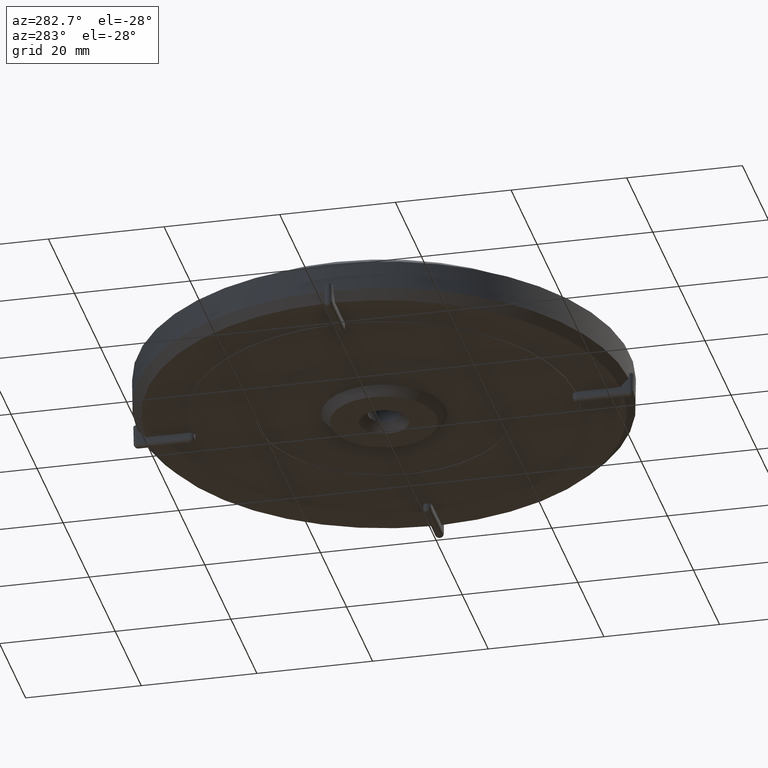
[diagram: clean part render]
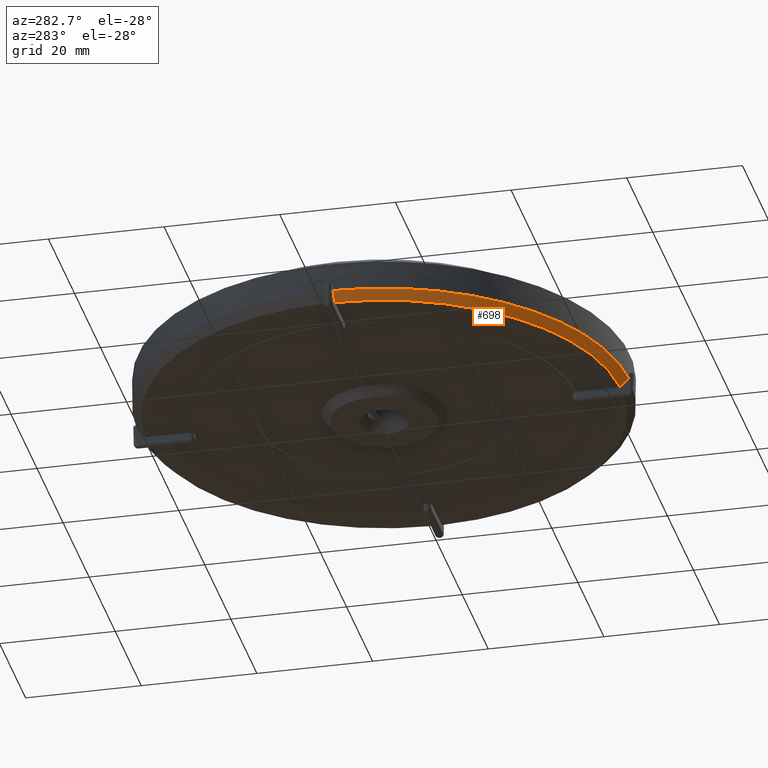
[diagram: same view with one face highlighted and labeled with its STEP entity id]
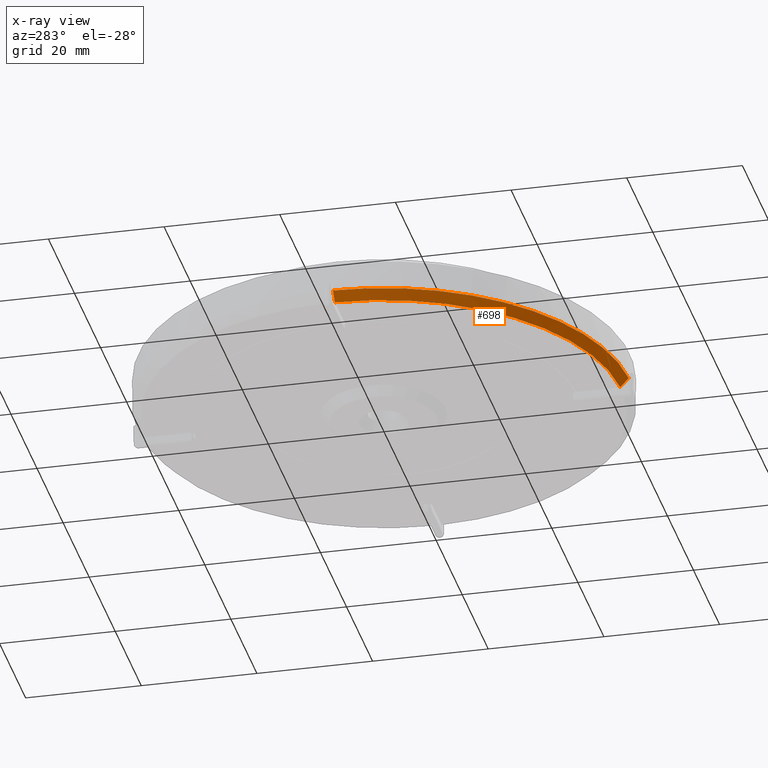
[diagram: x-ray of the same camera — body ghosted, the highlighted face saturated]
A machine part, auxiliary view. The second image highlights one B-rep face of the part: STEP entity #698.
The next image is the same camera in x-ray: the body ghosted, the highlighted face saturated — about 0% of this face is hidden behind the body in this view.
In plain terms, the highlighted conical surface has half-angle 45 deg.
Its self-contained STEP definition (entity closure, byte-faithful):
#177=LINE('',#8945,#297);
#178=LINE('',#8947,#298);
#297=VECTOR('',#3137,1.);
#298=VECTOR('',#3140,1.);
#307=CONICAL_SURFACE('',#2666,42.5000000811643,44.9999999999743);
#484=CIRCLE('',#2513,42.5);
#554=CIRCLE('',#2647,41.0000001649982);
#698=ADVANCED_FACE('',(#847),#307,.T.);
#847=FACE_OUTER_BOUND('',#1012,.T.);
#1012=EDGE_LOOP('',(#1728,#1729,#1730,#1731));
#1728=ORIENTED_EDGE('',*,*,#2354,.F.);
#1729=ORIENTED_EDGE('',*,*,#2034,.F.);
#1730=ORIENTED_EDGE('',*,*,#2355,.T.);
#1731=ORIENTED_EDGE('',*,*,#2331,.T.);
#1788=VERTEX_POINT('',#3842);
#1789=VERTEX_POINT('',#3844);
#1988=VERTEX_POINT('',#8895);
#1989=VERTEX_POINT('',#8897);
#2034=EDGE_CURVE('',#1788,#1789,#484,.T.);
#2331=EDGE_CURVE('',#1989,#1988,#554,.T.);
#2354=EDGE_CURVE('',#1789,#1988,#177,.T.);
#2355=EDGE_CURVE('',#1788,#1989,#178,.T.);
#2513=AXIS2_PLACEMENT_3D('',#3843,#2717,#2718);
#2647=AXIS2_PLACEMENT_3D('',#8896,#3081,#3082);
#2666=AXIS2_PLACEMENT_3D('',#8948,#3141,#3142);
#2717=DIRECTION('',(0.,0.,1.));
#2718=DIRECTION('',(-1.,0.,0.));
#3081=DIRECTION('',(0.,-5.10212786077625E-18,1.));
#3082=DIRECTION('',(0.,1.,5.28879106401121E-18));
#3137=DIRECTION('',(-2.10489056158631E-8,0.707161825918153,-0.707051732169651));
#3140=DIRECTION('',(0.707161840075194,-7.71833409716249E-10,-0.707051718010406));
#3141=DIRECTION('',(0.,-5.10212786077625E-18,1.));
#3142=DIRECTION('',(0.,-1.,3.03680608480951E-17));
#3842=CARTESIAN_POINT('',(-42.4933818376842,-0.749999998567696,3.10000000001276));
#3843=CARTESIAN_POINT('',(5.02898827078395E-30,7.86315457190769E-15,3.1));
#3844=CARTESIAN_POINT('',(-0.749999998567695,-42.4933818376841,3.10000000001258));
#8895=CARTESIAN_POINT('',(-0.75,-40.9931397524632,1.60000008249844));
#8896=CARTESIAN_POINT('',(5.02898827078395E-30,7.87080776327113E-15,1.60000016499689));
#8897=CARTESIAN_POINT('',(-40.9931397524633,-0.749999999999992,1.60000008249844));
#8945=CARTESIAN_POINT('',(-0.750000004865731,-41.7432619175616,2.34999898049074));
#8947=CARTESIAN_POINT('',(-41.7432619138075,-0.749999999488524,2.34999898424577));
#8948=CARTESIAN_POINT('',(5.02898827078395E-30,7.86315457190769E-15,3.10000008116426));